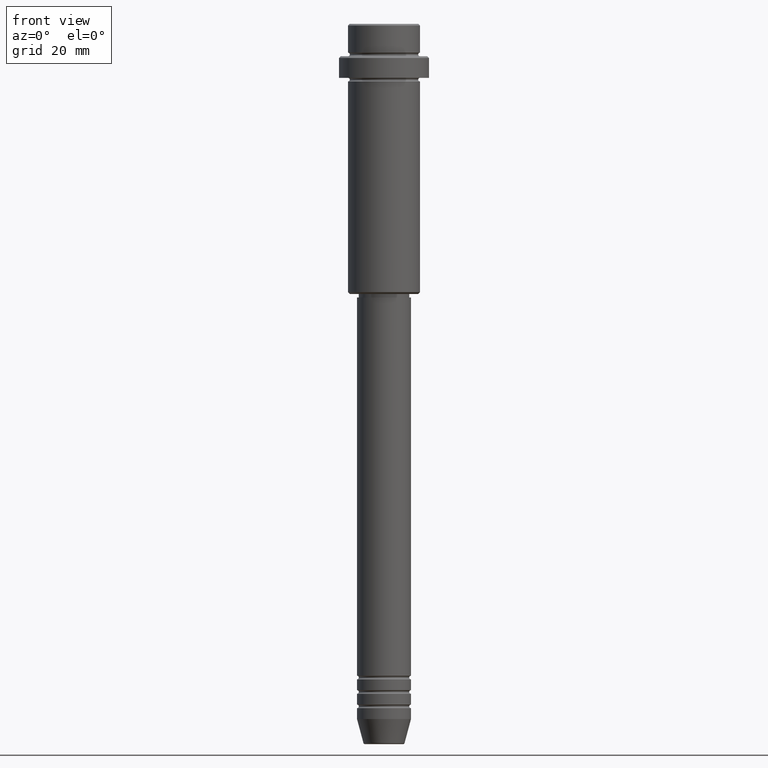
[diagram: clean part render]
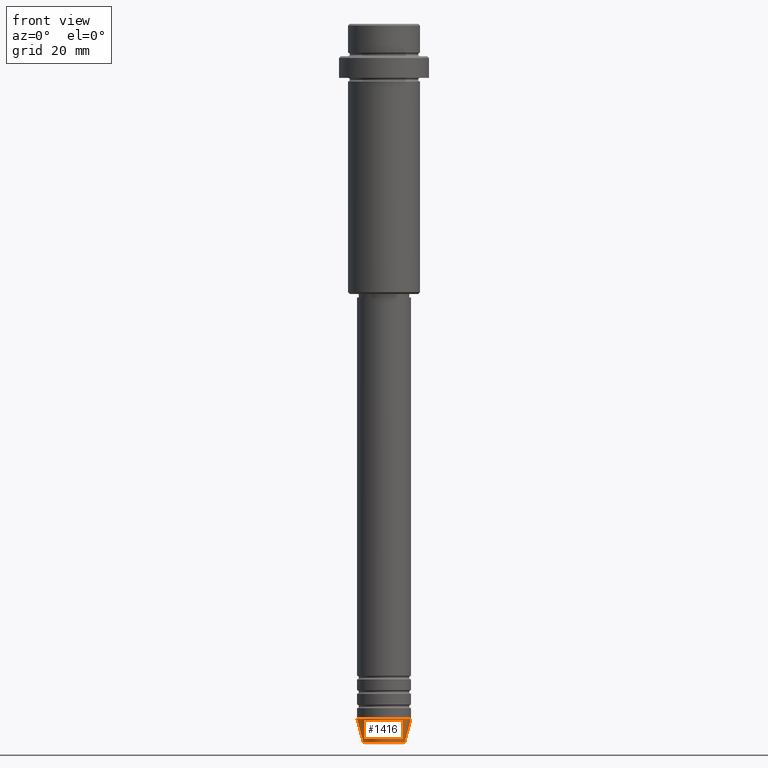
[diagram: same view with one face highlighted and labeled with its STEP entity id]
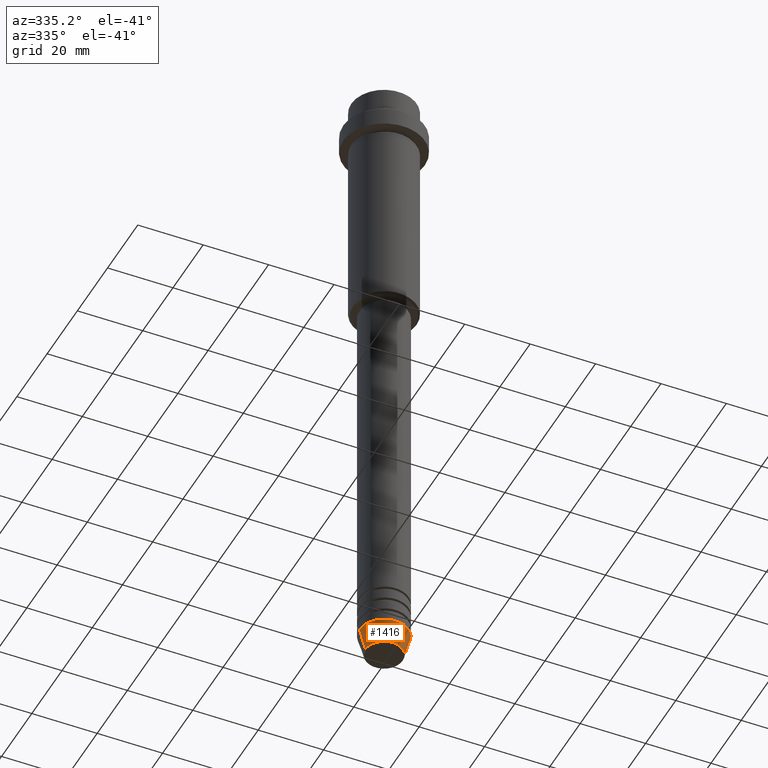
[diagram: same view with one face highlighted and labeled with its STEP entity id]
A machine part, front view. The second image highlights one B-rep face of the part: STEP entity #1416.
A second angle (auxiliary view) of the same face is appended — the face is thin or edge-on in the first view.
In plain terms, the highlighted conical surface has half-angle 15 deg.
Its self-contained STEP definition (entity closure, byte-faithful):
#48 = EDGE_CURVE ( 'NONE', #53, #705, #1361, .T. ) ;
#53 = VERTEX_POINT ( 'NONE', #185 ) ;
#60 = DIRECTION ( 'NONE',  ( -0.2588190451025213501, 3.169619151431772337E-17, 0.9659258262890680902 ) ) ;
#105 = DIRECTION ( 'NONE',  ( 1.000000000000000000, 0.000000000000000000, 0.000000000000000000 ) ) ;
#137 = DIRECTION ( 'NONE',  ( -0.000000000000000000, -0.000000000000000000, 1.000000000000000000 ) ) ;
#161 = DIRECTION ( 'NONE',  ( -0.000000000000000000, -0.000000000000000000, 1.000000000000000000 ) ) ;
#164 = EDGE_LOOP ( 'NONE', ( #549, #400, #376, #229 ) ) ;
#185 = CARTESIAN_POINT ( 'NONE',  ( -5.723655072137191269, 8.097153428560735915E-16, -199.6294095225512706 ) ) ;
#187 = CARTESIAN_POINT ( 'NONE',  ( 7.500000000000000000, 0.000000000000000000, -193.0000000000000000 ) ) ;
#229 = ORIENTED_EDGE ( 'NONE', *, *, #398, .F. ) ;
#238 = VECTOR ( 'NONE', #60, 1000.000000000000000 ) ;
#322 = DIRECTION ( 'NONE',  ( -0.000000000000000000, -0.000000000000000000, 1.000000000000000000 ) ) ;
#342 = VERTEX_POINT ( 'NONE', #642 ) ;
#363 = CARTESIAN_POINT ( 'NONE',  ( 0.000000000000000000, 0.000000000000000000, -193.0000000000000000 ) ) ;
#376 = ORIENTED_EDGE ( 'NONE', *, *, #1109, .T. ) ;
#379 = AXIS2_PLACEMENT_3D ( 'NONE', #1081, #322, #105 ) ;
#398 = EDGE_CURVE ( 'NONE', #705, #512, #785, .T. ) ;
#400 = ORIENTED_EDGE ( 'NONE', *, *, #1411, .T. ) ;
#407 = VECTOR ( 'NONE', #880, 1000.000000000000000 ) ;
#497 = DIRECTION ( 'NONE',  ( 1.000000000000000000, 0.000000000000000000, 0.000000000000000000 ) ) ;
#505 = CARTESIAN_POINT ( 'NONE',  ( -7.500000000000000000, 9.184850993605147944E-16, -193.0000000000000000 ) ) ;
#512 = VERTEX_POINT ( 'NONE', #187 ) ;
#519 = CONICAL_SURFACE ( 'NONE', #701, 7.500000000000000000, 0.2617993877991500740 ) ;
#521 = AXIS2_PLACEMENT_3D ( 'NONE', #693, #161, #497 ) ;
#549 = ORIENTED_EDGE ( 'NONE', *, *, #48, .F. ) ;
#591 = DIRECTION ( 'NONE',  ( 1.000000000000000000, 0.000000000000000000, 0.000000000000000000 ) ) ;
#642 = CARTESIAN_POINT ( 'NONE',  ( 5.723655072137191269, 0.000000000000000000, -199.6294095225512706 ) ) ;
#693 = CARTESIAN_POINT ( 'NONE',  ( 0.000000000000000000, 0.000000000000000000, -199.6294095225512706 ) ) ;
#701 = AXIS2_PLACEMENT_3D ( 'NONE', #363, #137, #591 ) ;
#705 = VERTEX_POINT ( 'NONE', #1194 ) ;
#785 = CIRCLE ( 'NONE', #379, 7.500000000000000000 ) ;
#791 = CIRCLE ( 'NONE', #521, 5.723655072137191269 ) ;
#880 = DIRECTION ( 'NONE',  ( 0.2588190451025213501, 0.000000000000000000, 0.9659258262890680902 ) ) ;
#975 = LINE ( 'NONE', #1095, #407 ) ;
#1081 = CARTESIAN_POINT ( 'NONE',  ( 0.000000000000000000, 0.000000000000000000, -193.0000000000000000 ) ) ;
#1095 = CARTESIAN_POINT ( 'NONE',  ( 7.500000000000000000, 0.000000000000000000, -193.0000000000000000 ) ) ;
#1109 = EDGE_CURVE ( 'NONE', #342, #512, #975, .T. ) ;
#1194 = CARTESIAN_POINT ( 'NONE',  ( -7.500000000000000000, 9.184850993605147944E-16, -193.0000000000000000 ) ) ;
#1237 = FACE_OUTER_BOUND ( 'NONE', #164, .T. ) ;
#1361 = LINE ( 'NONE', #505, #238 ) ;
#1411 = EDGE_CURVE ( 'NONE', #53, #342, #791, .T. ) ;
#1416 = ADVANCED_FACE ( 'NONE', ( #1237 ), #519, .T. ) ;